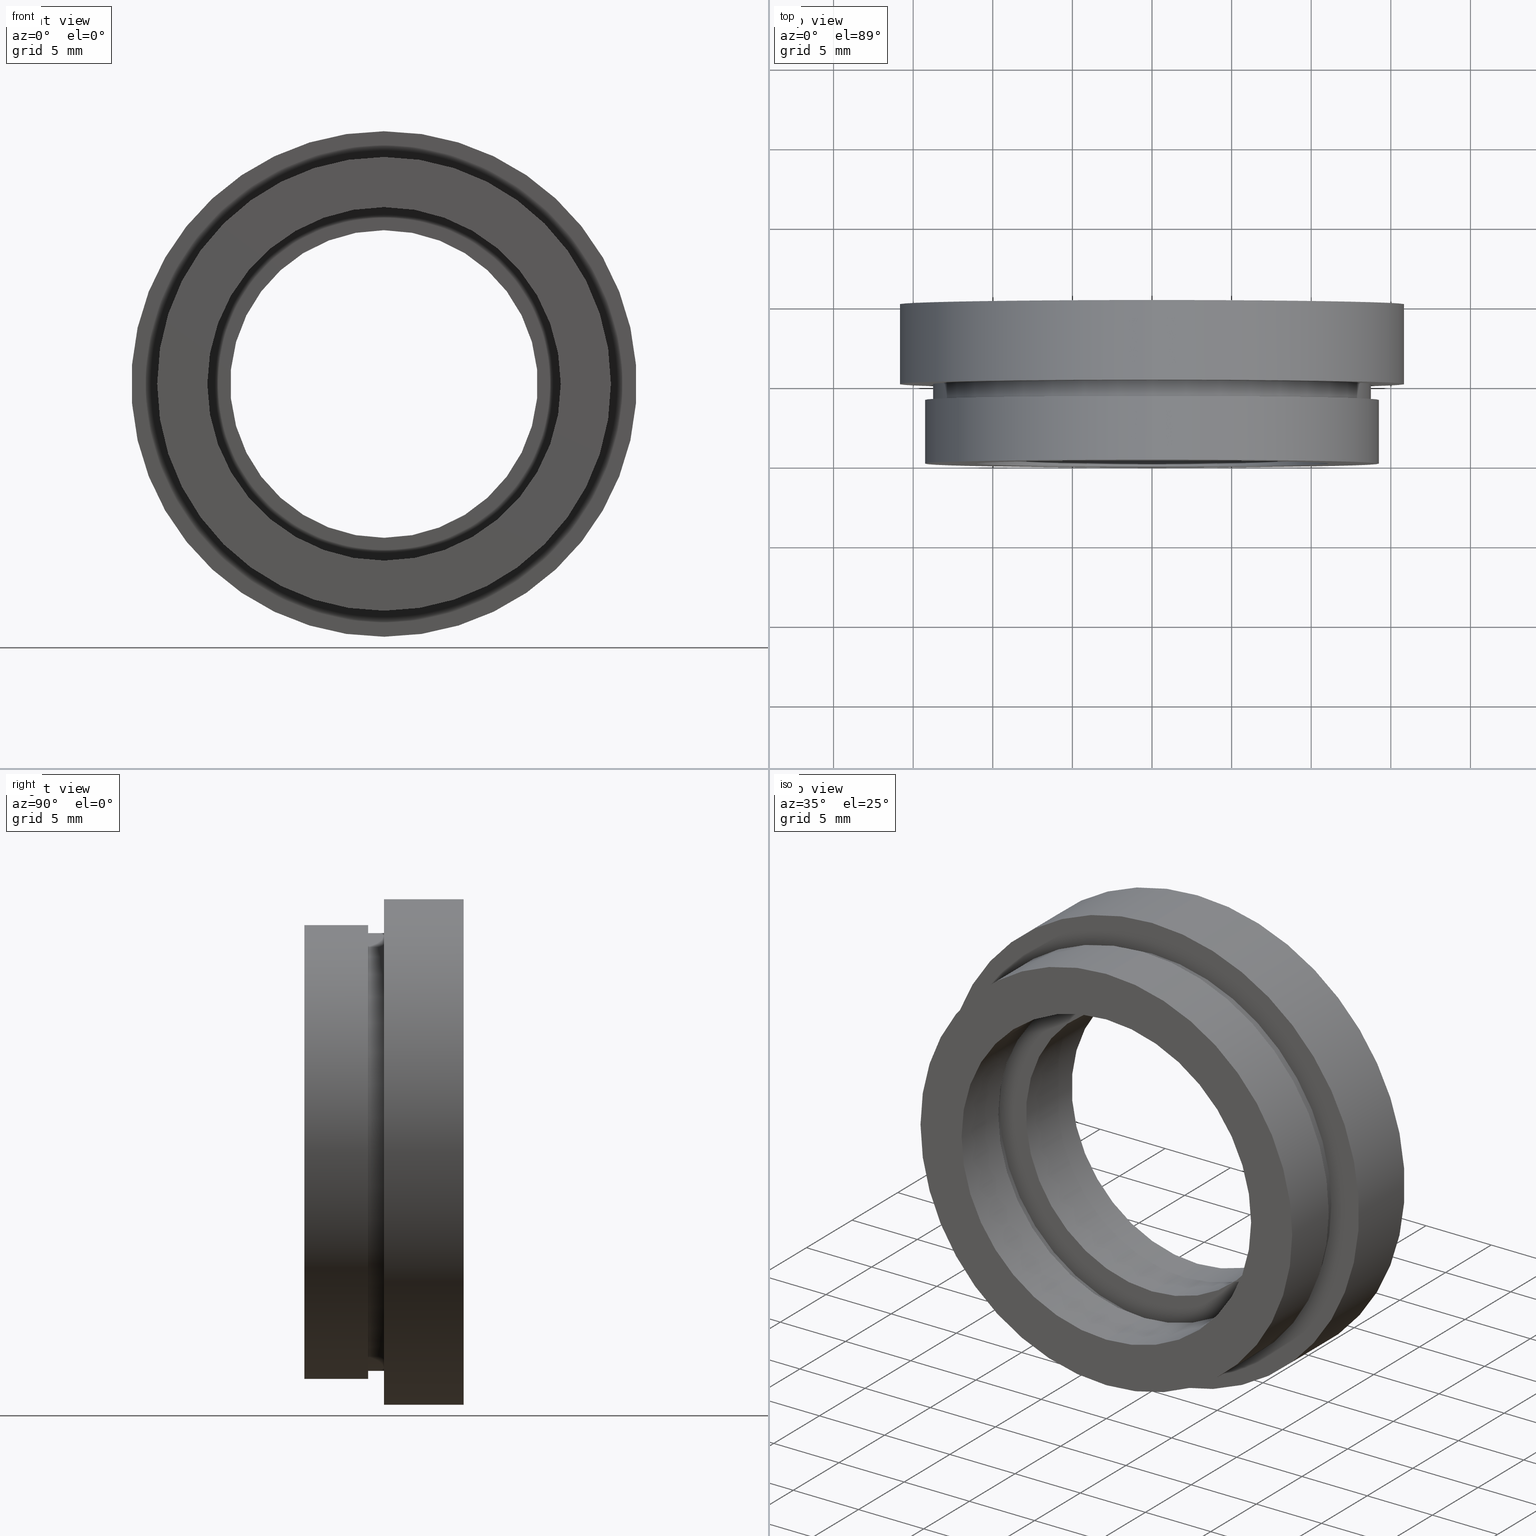
[diagram: canonical four-view strip — front | top / right | iso, engineering-drawing reading convention]
A machine part, canonical four-view strip (front | top / right | iso — engineering-drawing reading convention). The complete STEP part file that produces these views, byte-faithful:
ISO-10303-21;
HEADER;
FILE_DESCRIPTION (( 'STEP AP214' ),
    '1' );
FILE_NAME ('504127.STEP',
    '2019-10-10T07:55:11',
    ( 'user' ),
    ( '΢���й�' ),
    'SwSTEP 2.0',
    'SolidWorks 2016',
    '' );
FILE_SCHEMA (( 'AUTOMOTIVE_DESIGN' ));
ENDSEC;

DATA;
#1 =( LENGTH_UNIT ( ) NAMED_UNIT ( * ) SI_UNIT ( .MILLI., .METRE. ) );
#2 = ORIENTED_EDGE ( 'NONE', *, *, #137, .T. ) ;
#3 = DIRECTION ( 'NONE',  ( 0.0000000000000000000, 0.0000000000000000000, 1.000000000000000000 ) ) ;
#4 = CARTESIAN_POINT ( 'NONE',  ( 0.0000000000000000000, 4.000000000000000000, 0.0000000000000000000 ) ) ;
#5 = DIRECTION ( 'NONE',  ( 0.0000000000000000000, 0.0000000000000000000, 1.000000000000000000 ) ) ;
#6 = VECTOR ( 'NONE', #512, 1000.000000000000000 ) ;
#7 = VERTEX_POINT ( 'NONE', #585 ) ;
#8 = CARTESIAN_POINT ( 'NONE',  ( 0.0000000000000000000, 13.74468085106383300, 0.0000000000000000000 ) ) ;
#9 = VERTEX_POINT ( 'NONE', #18 ) ;
#10 = EDGE_CURVE ( 'NONE', #321, #36, #128, .T. ) ;
#11 = PRESENTATION_LAYER_ASSIGNMENT (  '', '', ( #587 ) ) ;
#12 = AXIS2_PLACEMENT_3D ( 'NONE', #497, #574, #176 ) ;
#13 = SURFACE_STYLE_USAGE ( .BOTH. , #536 ) ;
#14 =( NAMED_UNIT ( * ) PLANE_ANGLE_UNIT ( ) SI_UNIT ( $, .RADIAN. ) );
#15 = DIRECTION ( 'NONE',  ( -0.0000000000000000000, 1.000000000000000000, -0.0000000000000000000 ) ) ;
#16 =( NAMED_UNIT ( * ) PLANE_ANGLE_UNIT ( ) SI_UNIT ( $, .RADIAN. ) );
#17 = EDGE_LOOP ( 'NONE', ( #472, #621 ) ) ;
#18 = CARTESIAN_POINT ( 'NONE',  ( 0.0000000000000000000, 9.999999999999998200, 9.660000000000000100 ) ) ;
#19 = DIRECTION ( 'NONE',  ( -0.0000000000000000000, 1.000000000000000000, -0.0000000000000000000 ) ) ;
#20 =( NAMED_UNIT ( * ) SI_UNIT ( $, .STERADIAN. ) SOLID_ANGLE_UNIT ( ) );
#21 = CARTESIAN_POINT ( 'NONE',  ( 0.0000000000000000000, 5.000000000000000900, 0.0000000000000000000 ) ) ;
#22 = CIRCLE ( 'NONE', #177, 15.87500000000000000 ) ;
#23 = EDGE_LOOP ( 'NONE', ( #30, #610 ) ) ;
#24 = EDGE_CURVE ( 'NONE', #222, #106, #401, .T. ) ;
#25 = ADVANCED_FACE ( 'NONE', ( #280, #409 ), #434, .F. ) ;
#26 = EDGE_CURVE ( 'NONE', #592, #357, #28, .T. ) ;
#27 = DIRECTION ( 'NONE',  ( -0.0000000000000000000, 1.000000000000000000, -0.0000000000000000000 ) ) ;
#28 = LINE ( 'NONE', #285, #243 ) ;
#29 = PRESENTATION_LAYER_ASSIGNMENT (  '', '', ( #348 ) ) ;
#30 = ORIENTED_EDGE ( 'NONE', *, *, #565, .T. ) ;
#31 = DIRECTION ( 'NONE',  ( 0.0000000000000000000, 0.0000000000000000000, 1.000000000000000000 ) ) ;
#32 = PRESENTATION_STYLE_ASSIGNMENT (( #302 ) ) ;
#33 = EDGE_CURVE ( 'NONE', #557, #438, #589, .T. ) ;
#34 = CIRCLE ( 'NONE', #620, 13.75000000000000000 ) ;
#35 = FILL_AREA_STYLE_COLOUR ( '', #616 ) ;
#36 = VERTEX_POINT ( 'NONE', #404 ) ;
#37 = ORIENTED_EDGE ( 'NONE', *, *, #304, .T. ) ;
#38 = ORIENTED_EDGE ( 'NONE', *, *, #26, .F. ) ;
#39 =( LENGTH_UNIT ( ) NAMED_UNIT ( * ) SI_UNIT ( .MILLI., .METRE. ) );
#40 = SURFACE_STYLE_FILL_AREA ( #388 ) ;
#41 = EDGE_CURVE ( 'NONE', #373, #521, #420, .T. ) ;
#42 = AXIS2_PLACEMENT_3D ( 'NONE', #103, #121, #221 ) ;
#43 = LINE ( 'NONE', #452, #178 ) ;
#44 = CARTESIAN_POINT ( 'NONE',  ( 0.0000000000000000000, 13.74468085106383300, 13.75000000000000000 ) ) ;
#45 = ORIENTED_EDGE ( 'NONE', *, *, #165, .F. ) ;
#46 = ORIENTED_EDGE ( 'NONE', *, *, #63, .F. ) ;
#47 = AXIS2_PLACEMENT_3D ( 'NONE', #240, #376, #138 ) ;
#48 =( NAMED_UNIT ( * ) PLANE_ANGLE_UNIT ( ) SI_UNIT ( $, .RADIAN. ) );
#49 = UNCERTAINTY_MEASURE_WITH_UNIT (LENGTH_MEASURE( 1.000000000000000100E-005 ), #361, 'distance_accuracy_value', 'NONE');
#50 = SURFACE_STYLE_FILL_AREA ( #305 ) ;
#51 = EDGE_CURVE ( 'NONE', #357, #211, #433, .T. ) ;
#52 = VECTOR ( 'NONE', #27, 1000.000000000000000 ) ;
#53 = ADVANCED_FACE ( 'NONE', ( #555 ), #446, .F. ) ;
#54 = DIRECTION ( 'NONE',  ( -0.0000000000000000000, 1.000000000000000000, -0.0000000000000000000 ) ) ;
#55 = DIRECTION ( 'NONE',  ( 0.0000000000000000000, 0.0000000000000000000, 1.000000000000000000 ) ) ;
#56 = EDGE_CURVE ( 'NONE', #558, #7, #43, .T. ) ;
#57 = DIRECTION ( 'NONE',  ( 0.0000000000000000000, 0.0000000000000000000, 1.000000000000000000 ) ) ;
#58 = LINE ( 'NONE', #429, #509 ) ;
#59 = ADVANCED_FACE ( 'NONE', ( #166 ), #489, .T. ) ;
#60 =( NAMED_UNIT ( * ) SI_UNIT ( $, .STERADIAN. ) SOLID_ANGLE_UNIT ( ) );
#61 = PRESENTATION_STYLE_ASSIGNMENT (( #118 ) ) ;
#62 = DIRECTION ( 'NONE',  ( -0.0000000000000000000, 1.000000000000000000, -0.0000000000000000000 ) ) ;
#63 = EDGE_CURVE ( 'NONE', #592, #615, #22, .T. ) ;
#64 = CARTESIAN_POINT ( 'NONE',  ( 0.0000000000000000000, 0.0000000000000000000, 14.25000000000000000 ) ) ;
#65 = ORIENTED_EDGE ( 'NONE', *, *, #24, .T. ) ;
#66 = PLANE ( 'NONE',  #12 ) ;
#67 = DIRECTION ( 'NONE',  ( -0.0000000000000000000, 1.000000000000000000, -0.0000000000000000000 ) ) ;
#68 = STYLED_ITEM ( 'NONE', ( #269 ), #459 ) ;
#69 = CARTESIAN_POINT ( 'NONE',  ( 0.0000000000000000000, 9.999999999999998200, 0.0000000000000000000 ) ) ;
#70 = EDGE_LOOP ( 'NONE', ( #227, #572, #180, #38 ) ) ;
#71 = DIRECTION ( 'NONE',  ( -0.0000000000000000000, 1.000000000000000000, -0.0000000000000000000 ) ) ;
#72 = ORIENTED_EDGE ( 'NONE', *, *, #33, .T. ) ;
#73 = FILL_AREA_STYLE_COLOUR ( '', #120 ) ;
#74 = CARTESIAN_POINT ( 'NONE',  ( 0.0000000000000000000, 10.00000000000000000, 15.87500000000000000 ) ) ;
#75 = EDGE_CURVE ( 'NONE', #410, #222, #364, .T. ) ;
#76 = AXIS2_PLACEMENT_3D ( 'NONE', #293, #54, #366 ) ;
#77 = CARTESIAN_POINT ( 'NONE',  ( 1.745121688784978200E-015, 0.0000000000000000000, -14.25000000000000000 ) ) ;
#78 = DIRECTION ( 'NONE',  ( -0.0000000000000000000, 1.000000000000000000, -0.0000000000000000000 ) ) ;
#79 = ORIENTED_EDGE ( 'NONE', *, *, #56, .T. ) ;
#80 = ORIENTED_EDGE ( 'NONE', *, *, #24, .F. ) ;
#81 = CARTESIAN_POINT ( 'NONE',  ( 1.683889348827610700E-015, 4.000000000000000000, -13.75000000000000000 ) ) ;
#82 = DIRECTION ( 'NONE',  ( -0.0000000000000000000, 1.000000000000000000, -0.0000000000000000000 ) ) ;
#83 = VERTEX_POINT ( 'NONE', #217 ) ;
#84 = SURFACE_STYLE_FILL_AREA ( #377 ) ;
#85 = PLANE ( 'NONE',  #344 ) ;
#86 = FILL_AREA_STYLE ('',( #73 ) ) ;
#87 = CIRCLE ( 'NONE', #544, 14.25000000000000000 ) ;
#88 = FILL_AREA_STYLE_COLOUR ( '', #571 ) ;
#89 = EDGE_LOOP ( 'NONE', ( #451, #169, #65, #467 ) ) ;
#90 = LINE ( 'NONE', #478, #52 ) ;
#91 = SURFACE_STYLE_FILL_AREA ( #86 ) ;
#92 = EDGE_CURVE ( 'NONE', #218, #390, #397, .T. ) ;
#93 = PRODUCT ( '504127', '504127', '', ( #425 ) ) ;
#94 = AXIS2_PLACEMENT_3D ( 'NONE', #4, #214, #604 ) ;
#95 = EDGE_LOOP ( 'NONE', ( #170, #564 ) ) ;
#96 = ORIENTED_EDGE ( 'NONE', *, *, #568, .F. ) ;
#97 = PRESENTATION_STYLE_ASSIGNMENT (( #550 ) ) ;
#98 = COLOUR_RGB ( '',1.000000000000000000, 1.000000000000000000, 1.000000000000000000 ) ;
#99 =( GEOMETRIC_REPRESENTATION_CONTEXT ( 3 ) GLOBAL_UNCERTAINTY_ASSIGNED_CONTEXT ( ( #49 ) ) GLOBAL_UNIT_ASSIGNED_CONTEXT ( ( #361, #586, #399 ) ) REPRESENTATION_CONTEXT ( 'NONE', 'WORKASPACE' ) );
#100 =( NAMED_UNIT ( * ) PLANE_ANGLE_UNIT ( ) SI_UNIT ( $, .RADIAN. ) );
#101 = EDGE_CURVE ( 'NONE', #558, #193, #515, .T. ) ;
#102 = VERTEX_POINT ( 'NONE', #161 ) ;
#103 = CARTESIAN_POINT ( 'NONE',  ( 0.0000000000000000000, 0.0000000000000000000, 0.0000000000000000000 ) ) ;
#104 = CARTESIAN_POINT ( 'NONE',  ( 1.359357947053562400E-015, 0.0000000000000000000, -11.10000000000000100 ) ) ;
#105 = AXIS2_PLACEMENT_3D ( 'NONE', #517, #78, #144 ) ;
#106 = VERTEX_POINT ( 'NONE', #198 ) ;
#107 = AXIS2_PLACEMENT_3D ( 'NONE', #132, #345, #554 ) ;
#108 = CIRCLE ( 'NONE', #311, 9.660000000000000100 ) ;
#109 = DIRECTION ( 'NONE',  ( -0.0000000000000000000, 1.000000000000000000, -0.0000000000000000000 ) ) ;
#110 = CYLINDRICAL_SURFACE ( 'NONE', #385, 9.660000000000000100 ) ;
#111 = ADVANCED_FACE ( 'NONE', ( #618, #117 ), #85, .F. ) ;
#112 = ORIENTED_EDGE ( 'NONE', *, *, #206, .F. ) ;
#113 = ORIENTED_EDGE ( 'NONE', *, *, #494, .T. ) ;
#114 = DIRECTION ( 'NONE',  ( -0.0000000000000000000, 1.000000000000000000, -0.0000000000000000000 ) ) ;
#115 =( LENGTH_UNIT ( ) NAMED_UNIT ( * ) SI_UNIT ( .MILLI., .METRE. ) );
#116 = CARTESIAN_POINT ( 'NONE',  ( 0.0000000000000000000, 13.74468085106383300, 14.25000000000000000 ) ) ;
#117 = FACE_OUTER_BOUND ( 'NONE', #315, .T. ) ;
#118 = SURFACE_STYLE_USAGE ( .BOTH. , #253 ) ;
#119 = CARTESIAN_POINT ( 'NONE',  ( 1.432836755002403300E-015, 5.000000000000000900, -11.70000000000000100 ) ) ;
#120 = COLOUR_RGB ( '',1.000000000000000000, 1.000000000000000000, 1.000000000000000000 ) ;
#121 = DIRECTION ( 'NONE',  ( -0.0000000000000000000, 1.000000000000000000, -0.0000000000000000000 ) ) ;
#122 = CARTESIAN_POINT ( 'NONE',  ( 0.0000000000000000000, 13.74468085106383300, 0.0000000000000000000 ) ) ;
#123 = EDGE_CURVE ( 'NONE', #36, #390, #575, .T. ) ;
#124 = DIRECTION ( 'NONE',  ( -0.0000000000000000000, 1.000000000000000000, -0.0000000000000000000 ) ) ;
#125 = DIRECTION ( 'NONE',  ( -0.0000000000000000000, 1.000000000000000000, -0.0000000000000000000 ) ) ;
#126 = CARTESIAN_POINT ( 'NONE',  ( 1.944126793646423200E-015, 13.74468085106383300, -15.87500000000000000 ) ) ;
#127 =( NAMED_UNIT ( * ) SI_UNIT ( $, .STERADIAN. ) SOLID_ANGLE_UNIT ( ) );
#128 = CIRCLE ( 'NONE', #543, 13.75000000000000000 ) ;
#129 = EDGE_LOOP ( 'NONE', ( #503, #541, #246, #151 ) ) ;
#130 = LINE ( 'NONE', #126, #6 ) ;
#131 = EDGE_CURVE ( 'NONE', #321, #218, #359, .T. ) ;
#132 = CARTESIAN_POINT ( 'NONE',  ( 11.70000000000000100, 5.000000000000000000, 0.0000000000000000000 ) ) ;
#133 = FILL_AREA_STYLE ('',( #412 ) ) ;
#134 = CARTESIAN_POINT ( 'NONE',  ( 1.944126793646423200E-015, 10.00000000000000000, -15.87500000000000000 ) ) ;
#135 = SURFACE_SIDE_STYLE ('',( #476 ) ) ;
#136 = CARTESIAN_POINT ( 'NONE',  ( 1.432836755002403300E-015, 13.74468085106383300, -11.70000000000000100 ) ) ;
#137 = EDGE_CURVE ( 'NONE', #83, #9, #108, .T. ) ;
#138 = DIRECTION ( 'NONE',  ( 0.0000000000000000000, 0.0000000000000000000, 1.000000000000000000 ) ) ;
#139 =( LENGTH_UNIT ( ) NAMED_UNIT ( * ) SI_UNIT ( .MILLI., .METRE. ) );
#140 = AXIS2_PLACEMENT_3D ( 'NONE', #402, #125, #597 ) ;
#141 = AXIS2_PLACEMENT_3D ( 'NONE', #326, #190, #607 ) ;
#142 =( LENGTH_UNIT ( ) NAMED_UNIT ( * ) SI_UNIT ( .MILLI., .METRE. ) );
#143 = DIRECTION ( 'NONE',  ( -0.0000000000000000000, 1.000000000000000000, -0.0000000000000000000 ) ) ;
#144 = DIRECTION ( 'NONE',  ( 0.0000000000000000000, 0.0000000000000000000, 1.000000000000000000 ) ) ;
#145 = CIRCLE ( 'NONE', #595, 9.660000000000000100 ) ;
#146 = SHAPE_DEFINITION_REPRESENTATION ( #248, #346 ) ;
#147 = VECTOR ( 'NONE', #82, 1000.000000000000000 ) ;
#148 = UNCERTAINTY_MEASURE_WITH_UNIT (LENGTH_MEASURE( 1.000000000000000100E-005 ), #173, 'distance_accuracy_value', 'NONE');
#149 = EDGE_CURVE ( 'NONE', #102, #557, #605, .T. ) ;
#150 = DIRECTION ( 'NONE',  ( 0.0000000000000000000, 0.0000000000000000000, 1.000000000000000000 ) ) ;
#151 = ORIENTED_EDGE ( 'NONE', *, *, #230, .F. ) ;
#152 = CARTESIAN_POINT ( 'NONE',  ( 0.0000000000000000000, 13.74468085106383300, 0.0000000000000000000 ) ) ;
#153 = DIRECTION ( 'NONE',  ( 0.0000000000000000000, 0.0000000000000000000, 1.000000000000000000 ) ) ;
#154 = DIRECTION ( 'NONE',  ( 0.0000000000000000000, -1.000000000000000000, 0.0000000000000000000 ) ) ;
#155 = DIRECTION ( 'NONE',  ( 0.0000000000000000000, 0.0000000000000000000, 1.000000000000000000 ) ) ;
#156 = CYLINDRICAL_SURFACE ( 'NONE', #270, 14.25000000000000000 ) ;
#157 = ORIENTED_EDGE ( 'NONE', *, *, #568, .T. ) ;
#158 = ORIENTED_EDGE ( 'NONE', *, *, #565, .F. ) ;
#159 = FILL_AREA_STYLE_COLOUR ( '', #386 ) ;
#160 = EDGE_CURVE ( 'NONE', #521, #373, #322, .T. ) ;
#161 = CARTESIAN_POINT ( 'NONE',  ( 0.0000000000000000000, 4.000000000000000000, 11.70000000000000100 ) ) ;
#162 = CIRCLE ( 'NONE', #196, 11.10000000000000100 ) ;
#163 = CIRCLE ( 'NONE', #532, 14.25000000000000000 ) ;
#164 = CARTESIAN_POINT ( 'NONE',  ( 0.0000000000000000000, 5.000000000000000900, 0.0000000000000000000 ) ) ;
#165 = EDGE_CURVE ( 'NONE', #201, #7, #330, .T. ) ;
#166 = FACE_OUTER_BOUND ( 'NONE', #234, .T. ) ;
#167 = DIRECTION ( 'NONE',  ( 0.0000000000000000000, 0.0000000000000000000, 1.000000000000000000 ) ) ;
#168 = SURFACE_SIDE_STYLE ('',( #84 ) ) ;
#169 = ORIENTED_EDGE ( 'NONE', *, *, #320, .F. ) ;
#170 = ORIENTED_EDGE ( 'NONE', *, *, #320, .T. ) ;
#171 = PRESENTATION_LAYER_ASSIGNMENT (  '', '', ( #68 ) ) ;
#172 = FACE_OUTER_BOUND ( 'NONE', #235, .T. ) ;
#173 =( LENGTH_UNIT ( ) NAMED_UNIT ( * ) SI_UNIT ( .MILLI., .METRE. ) );
#174 = EDGE_CURVE ( 'NONE', #410, #383, #284, .T. ) ;
#175 = ORIENTED_EDGE ( 'NONE', *, *, #101, .F. ) ;
#176 = DIRECTION ( 'NONE',  ( 0.0000000000000000000, 0.0000000000000000000, 1.000000000000000000 ) ) ;
#177 = AXIS2_PLACEMENT_3D ( 'NONE', #576, #195, #216 ) ;
#178 = VECTOR ( 'NONE', #318, 1000.000000000000000 ) ;
#179 = PRESENTATION_STYLE_ASSIGNMENT (( #522 ) ) ;
#180 = ORIENTED_EDGE ( 'NONE', *, *, #51, .F. ) ;
#181 = ORIENTED_EDGE ( 'NONE', *, *, #449, .F. ) ;
#182 = FACE_OUTER_BOUND ( 'NONE', #468, .T. ) ;
#183 = EDGE_LOOP ( 'NONE', ( #481, #411, #261, #157 ) ) ;
#184 = ORIENTED_EDGE ( 'NONE', *, *, #327, .T. ) ;
#185 = ORIENTED_EDGE ( 'NONE', *, *, #282, .F. ) ;
#186 = CARTESIAN_POINT ( 'NONE',  ( 0.0000000000000000000, 13.74468085106383300, 0.0000000000000000000 ) ) ;
#187 = AXIS2_PLACEMENT_3D ( 'NONE', #152, #213, #552 ) ;
#188 = FACE_BOUND ( 'NONE', #95, .T. ) ;
#189 = DIRECTION ( 'NONE',  ( -0.0000000000000000000, 1.000000000000000000, -0.0000000000000000000 ) ) ;
#190 = DIRECTION ( 'NONE',  ( -0.0000000000000000000, 1.000000000000000000, -0.0000000000000000000 ) ) ;
#191 = CIRCLE ( 'NONE', #94, 11.70000000000000100 ) ;
#192 = FILL_AREA_STYLE_COLOUR ( '', #560 ) ;
#193 = VERTEX_POINT ( 'NONE', #64 ) ;
#194 = FACE_OUTER_BOUND ( 'NONE', #281, .T. ) ;
#195 = DIRECTION ( 'NONE',  ( -0.0000000000000000000, 1.000000000000000000, -0.0000000000000000000 ) ) ;
#196 = AXIS2_PLACEMENT_3D ( 'NONE', #432, #205, #31 ) ;
#197 = CARTESIAN_POINT ( 'NONE',  ( 1.183008807976343300E-015, 5.000000000000000900, -9.660000000000000100 ) ) ;
#198 = CARTESIAN_POINT ( 'NONE',  ( 0.0000000000000000000, 4.000000000000000000, 11.10000000000000100 ) ) ;
#199 = AXIS2_PLACEMENT_3D ( 'NONE', #485, #324, #167 ) ;
#200 =( NAMED_UNIT ( * ) SI_UNIT ( $, .STERADIAN. ) SOLID_ANGLE_UNIT ( ) );
#201 = VERTEX_POINT ( 'NONE', #287 ) ;
#202 = DIRECTION ( 'NONE',  ( 1.000000000000000000, 0.0000000000000000000, 0.0000000000000000000 ) ) ;
#203 = CARTESIAN_POINT ( 'NONE',  ( 0.0000000000000000000, 0.0000000000000000000, 0.0000000000000000000 ) ) ;
#204 = CARTESIAN_POINT ( 'NONE',  ( 0.0000000000000000000, 13.74468085106383300, 0.0000000000000000000 ) ) ;
#205 = DIRECTION ( 'NONE',  ( -0.0000000000000000000, 1.000000000000000000, -0.0000000000000000000 ) ) ;
#206 = EDGE_CURVE ( 'NONE', #193, #201, #511, .T. ) ;
#207 = AXIS2_PLACEMENT_3D ( 'NONE', #208, #71, #150 ) ;
#208 = CARTESIAN_POINT ( 'NONE',  ( 0.0000000000000000000, 4.999999999999999100, 0.0000000000000000000 ) ) ;
#209 = AXIS2_PLACEMENT_3D ( 'NONE', #374, #594, #507 ) ;
#210 = DIRECTION ( 'NONE',  ( 0.0000000000000000000, 0.0000000000000000000, 1.000000000000000000 ) ) ;
#211 = VERTEX_POINT ( 'NONE', #134 ) ;
#212 = ADVANCED_FACE ( 'NONE', ( #299 ), #413, .T. ) ;
#213 = DIRECTION ( 'NONE',  ( -0.0000000000000000000, 1.000000000000000000, -0.0000000000000000000 ) ) ;
#214 = DIRECTION ( 'NONE',  ( -0.0000000000000000000, 1.000000000000000000, -0.0000000000000000000 ) ) ;
#215 = CARTESIAN_POINT ( 'NONE',  ( 1.183008807976343300E-015, 13.74468085106383300, -9.660000000000000100 ) ) ;
#216 = DIRECTION ( 'NONE',  ( 0.0000000000000000000, 0.0000000000000000000, 1.000000000000000000 ) ) ;
#217 = CARTESIAN_POINT ( 'NONE',  ( 1.183008807976343300E-015, 9.999999999999998200, -9.660000000000000100 ) ) ;
#218 = VERTEX_POINT ( 'NONE', #606 ) ;
#219 = CIRCLE ( 'NONE', #239, 11.10000000000000100 ) ;
#220 = STYLED_ITEM ( 'NONE', ( #454 ), #245 ) ;
#221 = DIRECTION ( 'NONE',  ( 0.0000000000000000000, 0.0000000000000000000, 1.000000000000000000 ) ) ;
#222 = VERTEX_POINT ( 'NONE', #577 ) ;
#223 = PLANE ( 'NONE',  #312 ) ;
#224 = VECTOR ( 'NONE', #363, 1000.000000000000000 ) ;
#225 = MECHANICAL_DESIGN_GEOMETRIC_PRESENTATION_REPRESENTATION (  '', ( #68 ), #477 ) ;
#226 = FILL_AREA_STYLE ('',( #159 ) ) ;
#227 = ORIENTED_EDGE ( 'NONE', *, *, #63, .T. ) ;
#228 = ORIENTED_EDGE ( 'NONE', *, *, #123, .F. ) ;
#229 = FACE_BOUND ( 'NONE', #540, .T. ) ;
#230 = EDGE_CURVE ( 'NONE', #211, #357, #294, .T. ) ;
#231 = CYLINDRICAL_SURFACE ( 'NONE', #141, 15.87500000000000000 ) ;
#232 =( LENGTH_UNIT ( ) NAMED_UNIT ( * ) SI_UNIT ( .MILLI., .METRE. ) );
#233 = DIRECTION ( 'NONE',  ( -0.0000000000000000000, 1.000000000000000000, -0.0000000000000000000 ) ) ;
#234 = EDGE_LOOP ( 'NONE', ( #306, #448, #274, #355 ) ) ;
#235 = EDGE_LOOP ( 'NONE', ( #579, #72, #510, #547 ) ) ;
#236 = MECHANICAL_DESIGN_GEOMETRIC_PRESENTATION_REPRESENTATION (  '', ( #396 ), #608 ) ;
#237 = CARTESIAN_POINT ( 'NONE',  ( 0.0000000000000000000, 4.999999999999999100, 13.75000000000000000 ) ) ;
#238 = FACE_OUTER_BOUND ( 'NONE', #183, .T. ) ;
#239 = AXIS2_PLACEMENT_3D ( 'NONE', #371, #295, #619 ) ;
#240 = CARTESIAN_POINT ( 'NONE',  ( 0.0000000000000000000, 13.74468085106383300, 0.0000000000000000000 ) ) ;
#241 = DIRECTION ( 'NONE',  ( -0.0000000000000000000, 1.000000000000000000, -0.0000000000000000000 ) ) ;
#242 = APPLICATION_PROTOCOL_DEFINITION ( 'draft international standard', 'automotive_design', 1998, #418 ) ;
#243 = VECTOR ( 'NONE', #62, 1000.000000000000000 ) ;
#244 = ADVANCED_FACE ( 'NONE', ( #598 ), #436, .T. ) ;
#245 = ADVANCED_FACE ( 'NONE', ( #424 ), #523, .F. ) ;
#246 = ORIENTED_EDGE ( 'NONE', *, *, #26, .T. ) ;
#247 = FILL_AREA_STYLE ('',( #88 ) ) ;
#248 = PRODUCT_DEFINITION_SHAPE ( 'NONE', 'NONE',  #470 ) ;
#249 = FILL_AREA_STYLE_COLOUR ( '', #98 ) ;
#250 = AXIS2_PLACEMENT_3D ( 'NONE', #310, #457, #3 ) ;
#251 = UNCERTAINTY_MEASURE_WITH_UNIT (LENGTH_MEASURE( 1.000000000000000100E-005 ), #39, 'distance_accuracy_value', 'NONE');
#252 = CIRCLE ( 'NONE', #300, 13.75000000000000000 ) ;
#253 = SURFACE_SIDE_STYLE ('',( #314 ) ) ;
#254 = FACE_OUTER_BOUND ( 'NONE', #337, .T. ) ;
#255 = APPLICATION_CONTEXT ( 'automotive_design' ) ;
#256 = ADVANCED_FACE ( 'NONE', ( #622 ), #309, .F. ) ;
#257 = ORIENTED_EDGE ( 'NONE', *, *, #165, .T. ) ;
#258 = AXIS2_PLACEMENT_3D ( 'NONE', #122, #233, #553 ) ;
#259 = ORIENTED_EDGE ( 'NONE', *, *, #51, .T. ) ;
#260 = DIRECTION ( 'NONE',  ( 0.0000000000000000000, -1.000000000000000000, 0.0000000000000000000 ) ) ;
#261 = ORIENTED_EDGE ( 'NONE', *, *, #578, .T. ) ;
#262 = SURFACE_SIDE_STYLE ('',( #40 ) ) ;
#263 = FACE_OUTER_BOUND ( 'NONE', #70, .T. ) ;
#264 = DIRECTION ( 'NONE',  ( -0.0000000000000000000, 1.000000000000000000, -0.0000000000000000000 ) ) ;
#265 = CARTESIAN_POINT ( 'NONE',  ( 0.0000000000000000000, 0.0000000000000000000, 0.0000000000000000000 ) ) ;
#266 = ADVANCED_FACE ( 'NONE', ( #422 ), #479, .F. ) ;
#267 = DIRECTION ( 'NONE',  ( 0.0000000000000000000, 0.0000000000000000000, 1.000000000000000000 ) ) ;
#268 = CARTESIAN_POINT ( 'NONE',  ( 0.0000000000000000000, 13.74468085106383300, 0.0000000000000000000 ) ) ;
#269 = PRESENTATION_STYLE_ASSIGNMENT (( #13 ) ) ;
#270 = AXIS2_PLACEMENT_3D ( 'NONE', #8, #114, #155 ) ;
#271 = EDGE_LOOP ( 'NONE', ( #421, #79, #45, #112 ) ) ;
#272 =( NAMED_UNIT ( * ) SI_UNIT ( $, .STERADIAN. ) SOLID_ANGLE_UNIT ( ) );
#273 = ADVANCED_FACE ( 'NONE', ( #338, #549 ), #66, .F. ) ;
#274 = ORIENTED_EDGE ( 'NONE', *, *, #206, .T. ) ;
#275 = CYLINDRICAL_SURFACE ( 'NONE', #611, 11.70000000000000100 ) ;
#276 = FACE_OUTER_BOUND ( 'NONE', #356, .T. ) ;
#277 = AXIS2_PLACEMENT_3D ( 'NONE', #204, #19, #335 ) ;
#278 = CIRCLE ( 'NONE', #334, 15.87500000000000000 ) ;
#279 = CARTESIAN_POINT ( 'NONE',  ( 0.0000000000000000000, 5.000000000000000900, 15.87500000000000000 ) ) ;
#280 = FACE_BOUND ( 'NONE', #474, .T. ) ;
#281 = EDGE_LOOP ( 'NONE', ( #347, #435, #546, #288 ) ) ;
#282 = EDGE_CURVE ( 'NONE', #500, #438, #332, .T. ) ;
#283 = DIRECTION ( 'NONE',  ( 0.0000000000000000000, 0.0000000000000000000, 1.000000000000000000 ) ) ;
#284 = LINE ( 'NONE', #395, #301 ) ;
#285 = CARTESIAN_POINT ( 'NONE',  ( 0.0000000000000000000, 13.74468085106383300, 15.87500000000000000 ) ) ;
#286 = CARTESIAN_POINT ( 'NONE',  ( 0.0000000000000000000, 4.000000000000000000, 0.0000000000000000000 ) ) ;
#287 = CARTESIAN_POINT ( 'NONE',  ( 0.0000000000000000000, 4.000000000000000000, 14.25000000000000000 ) ) ;
#288 = ORIENTED_EDGE ( 'NONE', *, *, #92, .F. ) ;
#289 = ADVANCED_FACE ( 'NONE', ( #254, #350 ), #343, .F. ) ;
#290 = PRESENTATION_LAYER_ASSIGNMENT (  '', '', ( #396 ) ) ;
#291 = ORIENTED_EDGE ( 'NONE', *, *, #41, .F. ) ;
#292 = ADVANCED_FACE ( 'NONE', ( #229, #276 ), #370, .F. ) ;
#293 = CARTESIAN_POINT ( 'NONE',  ( 0.0000000000000000000, 0.0000000000000000000, 0.0000000000000000000 ) ) ;
#294 = CIRCLE ( 'NONE', #475, 15.87500000000000000 ) ;
#295 = DIRECTION ( 'NONE',  ( -0.0000000000000000000, 1.000000000000000000, -0.0000000000000000000 ) ) ;
#296 = DIRECTION ( 'NONE',  ( -0.0000000000000000000, 1.000000000000000000, -0.0000000000000000000 ) ) ;
#297 = VECTOR ( 'NONE', #405, 1000.000000000000000 ) ;
#298 = ORIENTED_EDGE ( 'NONE', *, *, #230, .T. ) ;
#299 = FACE_OUTER_BOUND ( 'NONE', #129, .T. ) ;
#300 = AXIS2_PLACEMENT_3D ( 'NONE', #407, #591, #353 ) ;
#301 = VECTOR ( 'NONE', #296, 1000.000000000000000 ) ;
#302 = SURFACE_STYLE_USAGE ( .BOTH. , #262 ) ;
#303 = ADVANCED_FACE ( 'NONE', ( #263 ), #231, .T. ) ;
#304 = EDGE_CURVE ( 'NONE', #373, #83, #612, .T. ) ;
#305 = FILL_AREA_STYLE ('',( #365 ) ) ;
#306 = ORIENTED_EDGE ( 'NONE', *, *, #56, .F. ) ;
#307 = ORIENTED_EDGE ( 'NONE', *, *, #149, .F. ) ;
#308 = PRODUCT_RELATED_PRODUCT_CATEGORY ( 'part', '', ( #93 ) ) ;
#309 = CYLINDRICAL_SURFACE ( 'NONE', #516, 11.10000000000000100 ) ;
#310 = CARTESIAN_POINT ( 'NONE',  ( 0.0000000000000000000, 13.74468085106383300, 0.0000000000000000000 ) ) ;
#311 = AXIS2_PLACEMENT_3D ( 'NONE', #545, #329, #437 ) ;
#312 = AXIS2_PLACEMENT_3D ( 'NONE', #524, #570, #5 ) ;
#313 = ADVANCED_FACE ( 'NONE', ( #172 ), #275, .F. ) ;
#314 = SURFACE_STYLE_FILL_AREA ( #247 ) ;
#315 = EDGE_LOOP ( 'NONE', ( #603, #492 ) ) ;
#316 = ORIENTED_EDGE ( 'NONE', *, *, #282, .T. ) ;
#317 = PRODUCT_DEFINITION_CONTEXT ( 'detailed design', #418, 'design' ) ;
#318 = DIRECTION ( 'NONE',  ( -0.0000000000000000000, 1.000000000000000000, -0.0000000000000000000 ) ) ;
#319 = VECTOR ( 'NONE', #530, 1000.000000000000000 ) ;
#320 = EDGE_CURVE ( 'NONE', #222, #410, #219, .T. ) ;
#321 = VERTEX_POINT ( 'NONE', #81 ) ;
#322 = CIRCLE ( 'NONE', #384, 9.660000000000000100 ) ;
#323 = MECHANICAL_DESIGN_GEOMETRIC_PRESENTATION_REPRESENTATION (  '', ( #220 ), #362 ) ;
#324 = DIRECTION ( 'NONE',  ( -0.0000000000000000000, 1.000000000000000000, -0.0000000000000000000 ) ) ;
#325 =( NAMED_UNIT ( * ) SI_UNIT ( $, .STERADIAN. ) SOLID_ANGLE_UNIT ( ) );
#326 = CARTESIAN_POINT ( 'NONE',  ( 0.0000000000000000000, 13.74468085106383300, 0.0000000000000000000 ) ) ;
#327 = EDGE_CURVE ( 'NONE', #102, #500, #90, .T. ) ;
#328 = CLOSED_SHELL ( 'NONE', ( #459, #244, #303, #245, #313, #256, #266, #111, #53, #289, #354, #292, #212, #273, #379, #25, #59, #340 ) ) ;
#329 = DIRECTION ( 'NONE',  ( -0.0000000000000000000, 1.000000000000000000, -0.0000000000000000000 ) ) ;
#330 = CIRCLE ( 'NONE', #416, 14.25000000000000000 ) ;
#331 = DIRECTION ( 'NONE',  ( -0.0000000000000000000, 1.000000000000000000, -0.0000000000000000000 ) ) ;
#332 = CIRCLE ( 'NONE', #537, 11.70000000000000100 ) ;
#333 = UNCERTAINTY_MEASURE_WITH_UNIT (LENGTH_MEASURE( 1.000000000000000100E-005 ), #139, 'distance_accuracy_value', 'NONE');
#334 = AXIS2_PLACEMENT_3D ( 'NONE', #498, #490, #153 ) ;
#335 = DIRECTION ( 'NONE',  ( 0.0000000000000000000, 0.0000000000000000000, 1.000000000000000000 ) ) ;
#336 = DIRECTION ( 'NONE',  ( -0.0000000000000000000, 1.000000000000000000, -0.0000000000000000000 ) ) ;
#337 = EDGE_LOOP ( 'NONE', ( #185, #613 ) ) ;
#338 = FACE_OUTER_BOUND ( 'NONE', #403, .T. ) ;
#339 = PRODUCT_DEFINITION_FORMATION_WITH_SPECIFIED_SOURCE ( '�κ�', '', #93, .NOT_KNOWN. ) ;
#340 = ADVANCED_FACE ( 'NONE', ( #182, #188 ), #223, .F. ) ;
#341 = CARTESIAN_POINT ( 'NONE',  ( 0.0000000000000000000, 5.000000000000000900, 0.0000000000000000000 ) ) ;
#342 = CIRCLE ( 'NONE', #567, 11.10000000000000100 ) ;
#343 = PLANE ( 'NONE',  #107 ) ;
#344 = AXIS2_PLACEMENT_3D ( 'NONE', #381, #260, #392 ) ;
#345 = DIRECTION ( 'NONE',  ( -0.0000000000000000000, 1.000000000000000000, 0.0000000000000000000 ) ) ;
#346 = ADVANCED_BREP_SHAPE_REPRESENTATION ( '504127', ( #358, #380 ), #99 ) ;
#347 = ORIENTED_EDGE ( 'NONE', *, *, #131, .F. ) ;
#348 = STYLED_ITEM ( 'NONE', ( #97 ), #354 ) ;
#349 = DIRECTION ( 'NONE',  ( 0.0000000000000000000, 0.0000000000000000000, 1.000000000000000000 ) ) ;
#350 = FACE_BOUND ( 'NONE', #17, .T. ) ;
#351 = SURFACE_SIDE_STYLE ('',( #91 ) ) ;
#352 = CARTESIAN_POINT ( 'NONE',  ( 0.0000000000000000000, 4.000000000000000000, 0.0000000000000000000 ) ) ;
#353 = DIRECTION ( 'NONE',  ( 0.0000000000000000000, 0.0000000000000000000, 1.000000000000000000 ) ) ;
#354 = ADVANCED_FACE ( 'NONE', ( #238 ), #110, .F. ) ;
#355 = ORIENTED_EDGE ( 'NONE', *, *, #535, .F. ) ;
#356 = EDGE_LOOP ( 'NONE', ( #259, #298 ) ) ;
#357 = VERTEX_POINT ( 'NONE', #74 ) ;
#358 = MANIFOLD_SOLID_BREP ( '��ת1', #328 ) ;
#359 = LINE ( 'NONE', #469, #319 ) ;
#360 = CARTESIAN_POINT ( 'NONE',  ( 0.0000000000000000000, 13.74468085106383300, 0.0000000000000000000 ) ) ;
#361 =( LENGTH_UNIT ( ) NAMED_UNIT ( * ) SI_UNIT ( .MILLI., .METRE. ) );
#362 =( GEOMETRIC_REPRESENTATION_CONTEXT ( 3 ) GLOBAL_UNCERTAINTY_ASSIGNED_CONTEXT ( ( #458 ) ) GLOBAL_UNIT_ASSIGNED_CONTEXT ( ( #232, #394, #484 ) ) REPRESENTATION_CONTEXT ( 'NONE', 'WORKASPACE' ) );
#363 = DIRECTION ( 'NONE',  ( -0.0000000000000000000, 1.000000000000000000, -0.0000000000000000000 ) ) ;
#364 = CIRCLE ( 'NONE', #76, 11.10000000000000100 ) ;
#365 = FILL_AREA_STYLE_COLOUR ( '', #508 ) ;
#366 = DIRECTION ( 'NONE',  ( 0.0000000000000000000, 0.0000000000000000000, 1.000000000000000000 ) ) ;
#367 = ORIENTED_EDGE ( 'NONE', *, *, #617, .F. ) ;
#368 = EDGE_CURVE ( 'NONE', #615, #211, #130, .T. ) ;
#369 = DIRECTION ( 'NONE',  ( 0.0000000000000000000, 0.0000000000000000000, 1.000000000000000000 ) ) ;
#370 = PLANE ( 'NONE',  #209 ) ;
#371 = CARTESIAN_POINT ( 'NONE',  ( 0.0000000000000000000, 0.0000000000000000000, 0.0000000000000000000 ) ) ;
#372 = EDGE_LOOP ( 'NONE', ( #562, #307, #184, #316 ) ) ;
#373 = VERTEX_POINT ( 'NONE', #197 ) ;
#374 = CARTESIAN_POINT ( 'NONE',  ( 9.660000000000000100, 9.999999999999998200, 0.0000000000000000000 ) ) ;
#375 = EDGE_CURVE ( 'NONE', #438, #500, #426, .T. ) ;
#376 = DIRECTION ( 'NONE',  ( -0.0000000000000000000, 1.000000000000000000, -0.0000000000000000000 ) ) ;
#377 = FILL_AREA_STYLE ('',( #249 ) ) ;
#378 = UNCERTAINTY_MEASURE_WITH_UNIT (LENGTH_MEASURE( 1.000000000000000100E-005 ), #1, 'distance_accuracy_value', 'NONE');
#379 = ADVANCED_FACE ( 'NONE', ( #194 ), #499, .T. ) ;
#380 = AXIS2_PLACEMENT_3D ( 'NONE', #203, #57, #202 ) ;
#381 = CARTESIAN_POINT ( 'NONE',  ( 11.10000000000000100, 4.000000000000000000, 0.0000000000000000000 ) ) ;
#382 = DIRECTION ( 'NONE',  ( 0.0000000000000000000, 0.0000000000000000000, 1.000000000000000000 ) ) ;
#383 = VERTEX_POINT ( 'NONE', #488 ) ;
#384 = AXIS2_PLACEMENT_3D ( 'NONE', #164, #15, #283 ) ;
#385 = AXIS2_PLACEMENT_3D ( 'NONE', #268, #241, #55 ) ;
#386 = COLOUR_RGB ( '',1.000000000000000000, 1.000000000000000000, 1.000000000000000000 ) ;
#387 =( NAMED_UNIT ( * ) PLANE_ANGLE_UNIT ( ) SI_UNIT ( $, .RADIAN. ) );
#388 = FILL_AREA_STYLE ('',( #192 ) ) ;
#389 = ORIENTED_EDGE ( 'NONE', *, *, #578, .F. ) ;
#390 = VERTEX_POINT ( 'NONE', #237 ) ;
#391 = DIRECTION ( 'NONE',  ( -0.0000000000000000000, 1.000000000000000000, -0.0000000000000000000 ) ) ;
#392 = DIRECTION ( 'NONE',  ( 0.0000000000000000000, -0.0000000000000000000, -1.000000000000000000 ) ) ;
#393 =( NAMED_UNIT ( * ) PLANE_ANGLE_UNIT ( ) SI_UNIT ( $, .RADIAN. ) );
#394 =( NAMED_UNIT ( * ) PLANE_ANGLE_UNIT ( ) SI_UNIT ( $, .RADIAN. ) );
#395 = CARTESIAN_POINT ( 'NONE',  ( 1.359357947053562400E-015, 13.74468085106383300, -11.10000000000000100 ) ) ;
#396 = STYLED_ITEM ( 'NONE', ( #513 ), #256 ) ;
#397 = CIRCLE ( 'NONE', #207, 13.75000000000000000 ) ;
#398 = CARTESIAN_POINT ( 'NONE',  ( 1.944126793646423200E-015, 5.000000000000000900, -15.87500000000000000 ) ) ;
#399 =( NAMED_UNIT ( * ) SI_UNIT ( $, .STERADIAN. ) SOLID_ANGLE_UNIT ( ) );
#400 = DIRECTION ( 'NONE',  ( -0.0000000000000000000, 1.000000000000000000, -0.0000000000000000000 ) ) ;
#401 = LINE ( 'NONE', #538, #147 ) ;
#402 = CARTESIAN_POINT ( 'NONE',  ( 0.0000000000000000000, 13.74468085106383300, 0.0000000000000000000 ) ) ;
#403 = EDGE_LOOP ( 'NONE', ( #46, #181 ) ) ;
#404 = CARTESIAN_POINT ( 'NONE',  ( 0.0000000000000000000, 4.000000000000000000, 13.75000000000000000 ) ) ;
#405 = DIRECTION ( 'NONE',  ( -0.0000000000000000000, 1.000000000000000000, -0.0000000000000000000 ) ) ;
#406 = MECHANICAL_DESIGN_GEOMETRIC_PRESENTATION_REPRESENTATION (  '', ( #461 ), #518 ) ;
#407 = CARTESIAN_POINT ( 'NONE',  ( 0.0000000000000000000, 4.000000000000000000, 0.0000000000000000000 ) ) ;
#408 = FACE_OUTER_BOUND ( 'NONE', #271, .T. ) ;
#409 = FACE_OUTER_BOUND ( 'NONE', #491, .T. ) ;
#410 = VERTEX_POINT ( 'NONE', #104 ) ;
#411 = ORIENTED_EDGE ( 'NONE', *, *, #160, .F. ) ;
#412 = FILL_AREA_STYLE_COLOUR ( '', #493 ) ;
#413 = CYLINDRICAL_SURFACE ( 'NONE', #187, 15.87500000000000000 ) ;
#414 = APPLICATION_PROTOCOL_DEFINITION ( 'draft international standard', 'automotive_design', 1998, #255 ) ;
#415 = CARTESIAN_POINT ( 'NONE',  ( 0.0000000000000000000, 4.000000000000000000, 0.0000000000000000000 ) ) ;
#416 = AXIS2_PLACEMENT_3D ( 'NONE', #352, #559, #569 ) ;
#417 = MECHANICAL_DESIGN_GEOMETRIC_PRESENTATION_REPRESENTATION (  '', ( #506 ), #447 ) ;
#418 = APPLICATION_CONTEXT ( 'automotive_design' ) ;
#419 = SURFACE_STYLE_USAGE ( .BOTH. , #168 ) ;
#420 = CIRCLE ( 'NONE', #199, 9.660000000000000100 ) ;
#421 = ORIENTED_EDGE ( 'NONE', *, *, #617, .T. ) ;
#422 = FACE_OUTER_BOUND ( 'NONE', #89, .T. ) ;
#423 = EDGE_CURVE ( 'NONE', #557, #102, #191, .T. ) ;
#424 = FACE_OUTER_BOUND ( 'NONE', #495, .T. ) ;
#425 = PRODUCT_CONTEXT ( 'NONE', #255, 'mechanical' ) ;
#426 = CIRCLE ( 'NONE', #539, 11.70000000000000100 ) ;
#427 = EDGE_LOOP ( 'NONE', ( #113, #496, #158, #228 ) ) ;
#428 = ORIENTED_EDGE ( 'NONE', *, *, #535, .T. ) ;
#429 = CARTESIAN_POINT ( 'NONE',  ( 0.0000000000000000000, 13.74468085106383300, 9.660000000000000100 ) ) ;
#430 = AXIS2_PLACEMENT_3D ( 'NONE', #186, #67, #584 ) ;
#431 = DIRECTION ( 'NONE',  ( 0.0000000000000000000, 0.0000000000000000000, 1.000000000000000000 ) ) ;
#432 = CARTESIAN_POINT ( 'NONE',  ( 0.0000000000000000000, 4.000000000000000000, 0.0000000000000000000 ) ) ;
#433 = CIRCLE ( 'NONE', #439, 15.87500000000000000 ) ;
#434 = PLANE ( 'NONE',  #480 ) ;
#435 = ORIENTED_EDGE ( 'NONE', *, *, #10, .T. ) ;
#436 = CYLINDRICAL_SURFACE ( 'NONE', #250, 13.75000000000000000 ) ;
#437 = DIRECTION ( 'NONE',  ( 0.0000000000000000000, 0.0000000000000000000, 1.000000000000000000 ) ) ;
#438 = VERTEX_POINT ( 'NONE', #119 ) ;
#439 = AXIS2_PLACEMENT_3D ( 'NONE', #514, #463, #486 ) ;
#440 = ORIENTED_EDGE ( 'NONE', *, *, #75, .F. ) ;
#441 = SURFACE_STYLE_USAGE ( .BOTH. , #135 ) ;
#442 = DIRECTION ( 'NONE',  ( 0.0000000000000000000, -0.0000000000000000000, -1.000000000000000000 ) ) ;
#443 =( GEOMETRIC_REPRESENTATION_CONTEXT ( 3 ) GLOBAL_UNCERTAINTY_ASSIGNED_CONTEXT ( ( #148 ) ) GLOBAL_UNIT_ASSIGNED_CONTEXT ( ( #173, #48, #60 ) ) REPRESENTATION_CONTEXT ( 'NONE', 'WORKASPACE' ) );
#444 =( NAMED_UNIT ( * ) SI_UNIT ( $, .STERADIAN. ) SOLID_ANGLE_UNIT ( ) );
#445 = PRESENTATION_LAYER_ASSIGNMENT (  '', '', ( #220 ) ) ;
#446 = CYLINDRICAL_SURFACE ( 'NONE', #47, 11.70000000000000100 ) ;
#447 =( GEOMETRIC_REPRESENTATION_CONTEXT ( 3 ) GLOBAL_UNCERTAINTY_ASSIGNED_CONTEXT ( ( #609 ) ) GLOBAL_UNIT_ASSIGNED_CONTEXT ( ( #142, #561, #200 ) ) REPRESENTATION_CONTEXT ( 'NONE', 'WORKASPACE' ) );
#448 = ORIENTED_EDGE ( 'NONE', *, *, #101, .T. ) ;
#449 = EDGE_CURVE ( 'NONE', #615, #592, #278, .T. ) ;
#450 = MECHANICAL_DESIGN_GEOMETRIC_PRESENTATION_REPRESENTATION (  '', ( #483 ), #443 ) ;
#451 = ORIENTED_EDGE ( 'NONE', *, *, #174, .F. ) ;
#452 = CARTESIAN_POINT ( 'NONE',  ( 1.745121688784978200E-015, 13.74468085106383300, -14.25000000000000000 ) ) ;
#453 = ORIENTED_EDGE ( 'NONE', *, *, #174, .T. ) ;
#454 = PRESENTATION_STYLE_ASSIGNMENT (( #441 ) ) ;
#455 = DIRECTION ( 'NONE',  ( -0.0000000000000000000, 1.000000000000000000, -0.0000000000000000000 ) ) ;
#456 = DIRECTION ( 'NONE',  ( -0.0000000000000000000, 1.000000000000000000, -0.0000000000000000000 ) ) ;
#457 = DIRECTION ( 'NONE',  ( -0.0000000000000000000, 1.000000000000000000, -0.0000000000000000000 ) ) ;
#458 = UNCERTAINTY_MEASURE_WITH_UNIT (LENGTH_MEASURE( 1.000000000000000100E-005 ), #232, 'distance_accuracy_value', 'NONE');
#459 = ADVANCED_FACE ( 'NONE', ( #408 ), #156, .T. ) ;
#460 = ORIENTED_EDGE ( 'NONE', *, *, #602, .T. ) ;
#461 = STYLED_ITEM ( 'NONE', ( #61 ), #59 ) ;
#462 = PRESENTATION_STYLE_ASSIGNMENT (( #419 ) ) ;
#463 = DIRECTION ( 'NONE',  ( -0.0000000000000000000, 1.000000000000000000, -0.0000000000000000000 ) ) ;
#464 = DIRECTION ( 'NONE',  ( 0.0000000000000000000, 0.0000000000000000000, 1.000000000000000000 ) ) ;
#465 = DIRECTION ( 'NONE',  ( 0.0000000000000000000, 0.0000000000000000000, 1.000000000000000000 ) ) ;
#466 = EDGE_LOOP ( 'NONE', ( #440, #453, #460, #80 ) ) ;
#467 = ORIENTED_EDGE ( 'NONE', *, *, #528, .T. ) ;
#468 = EDGE_LOOP ( 'NONE', ( #367, #175 ) ) ;
#469 = CARTESIAN_POINT ( 'NONE',  ( 1.683889348827610700E-015, 13.74468085106383300, -13.75000000000000000 ) ) ;
#470 = PRODUCT_DEFINITION ( 'δ֪', '', #339, #317 ) ;
#471 = DIRECTION ( 'NONE',  ( -0.0000000000000000000, 1.000000000000000000, -0.0000000000000000000 ) ) ;
#472 = ORIENTED_EDGE ( 'NONE', *, *, #160, .T. ) ;
#473 = SURFACE_SIDE_STYLE ('',( #505 ) ) ;
#474 = EDGE_LOOP ( 'NONE', ( #531, #614 ) ) ;
#475 = AXIS2_PLACEMENT_3D ( 'NONE', #588, #590, #464 ) ;
#476 = SURFACE_STYLE_FILL_AREA ( #133 ) ;
#477 =( GEOMETRIC_REPRESENTATION_CONTEXT ( 3 ) GLOBAL_UNCERTAINTY_ASSIGNED_CONTEXT ( ( #527 ) ) GLOBAL_UNIT_ASSIGNED_CONTEXT ( ( #115, #16, #127 ) ) REPRESENTATION_CONTEXT ( 'NONE', 'WORKASPACE' ) );
#478 = CARTESIAN_POINT ( 'NONE',  ( 0.0000000000000000000, 13.74468085106383300, 11.70000000000000100 ) ) ;
#479 = CYLINDRICAL_SURFACE ( 'NONE', #277, 11.10000000000000100 ) ;
#480 = AXIS2_PLACEMENT_3D ( 'NONE', #501, #154, #442 ) ;
#481 = ORIENTED_EDGE ( 'NONE', *, *, #304, .F. ) ;
#482 = ORIENTED_EDGE ( 'NONE', *, *, #602, .F. ) ;
#483 = STYLED_ITEM ( 'NONE', ( #179 ), #346 ) ;
#484 =( NAMED_UNIT ( * ) SI_UNIT ( $, .STERADIAN. ) SOLID_ANGLE_UNIT ( ) );
#485 = CARTESIAN_POINT ( 'NONE',  ( 0.0000000000000000000, 5.000000000000000900, 0.0000000000000000000 ) ) ;
#486 = DIRECTION ( 'NONE',  ( 0.0000000000000000000, 0.0000000000000000000, 1.000000000000000000 ) ) ;
#487 =( GEOMETRIC_REPRESENTATION_CONTEXT ( 3 ) GLOBAL_UNCERTAINTY_ASSIGNED_CONTEXT ( ( #333 ) ) GLOBAL_UNIT_ASSIGNED_CONTEXT ( ( #139, #393, #444 ) ) REPRESENTATION_CONTEXT ( 'NONE', 'WORKASPACE' ) );
#488 = CARTESIAN_POINT ( 'NONE',  ( 1.359357947053562400E-015, 4.000000000000000000, -11.10000000000000100 ) ) ;
#489 = CYLINDRICAL_SURFACE ( 'NONE', #140, 14.25000000000000000 ) ;
#490 = DIRECTION ( 'NONE',  ( -0.0000000000000000000, 1.000000000000000000, -0.0000000000000000000 ) ) ;
#491 = EDGE_LOOP ( 'NONE', ( #257, #428 ) ) ;
#492 = ORIENTED_EDGE ( 'NONE', *, *, #423, .T. ) ;
#493 = COLOUR_RGB ( '',1.000000000000000000, 1.000000000000000000, 1.000000000000000000 ) ;
#494 = EDGE_CURVE ( 'NONE', #36, #321, #252, .T. ) ;
#495 = EDGE_LOOP ( 'NONE', ( #291, #37, #2, #389 ) ) ;
#496 = ORIENTED_EDGE ( 'NONE', *, *, #131, .T. ) ;
#497 = CARTESIAN_POINT ( 'NONE',  ( 15.87500000000000000, 4.999999999999999100, 0.0000000000000000000 ) ) ;
#498 = CARTESIAN_POINT ( 'NONE',  ( 0.0000000000000000000, 5.000000000000000900, 0.0000000000000000000 ) ) ;
#499 = CYLINDRICAL_SURFACE ( 'NONE', #258, 13.75000000000000000 ) ;
#500 = VERTEX_POINT ( 'NONE', #581 ) ;
#501 = CARTESIAN_POINT ( 'NONE',  ( 13.75000000000000000, 4.000000000000000000, 0.0000000000000000000 ) ) ;
#502 =( LENGTH_UNIT ( ) NAMED_UNIT ( * ) SI_UNIT ( .MILLI., .METRE. ) );
#503 = ORIENTED_EDGE ( 'NONE', *, *, #368, .F. ) ;
#504 = UNCERTAINTY_MEASURE_WITH_UNIT (LENGTH_MEASURE( 1.000000000000000100E-005 ), #502, 'distance_accuracy_value', 'NONE');
#505 = SURFACE_STYLE_FILL_AREA ( #566 ) ;
#506 = STYLED_ITEM ( 'NONE', ( #462 ), #358 ) ;
#507 = DIRECTION ( 'NONE',  ( 0.0000000000000000000, -0.0000000000000000000, -1.000000000000000000 ) ) ;
#508 = COLOUR_RGB ( '',1.000000000000000000, 1.000000000000000000, 1.000000000000000000 ) ;
#509 = VECTOR ( 'NONE', #336, 1000.000000000000000 ) ;
#510 = ORIENTED_EDGE ( 'NONE', *, *, #375, .T. ) ;
#511 = LINE ( 'NONE', #116, #534 ) ;
#512 = DIRECTION ( 'NONE',  ( -0.0000000000000000000, 1.000000000000000000, -0.0000000000000000000 ) ) ;
#513 = PRESENTATION_STYLE_ASSIGNMENT (( #583 ) ) ;
#514 = CARTESIAN_POINT ( 'NONE',  ( 0.0000000000000000000, 10.00000000000000000, 0.0000000000000000000 ) ) ;
#515 = CIRCLE ( 'NONE', #42, 14.25000000000000000 ) ;
#516 = AXIS2_PLACEMENT_3D ( 'NONE', #525, #189, #465 ) ;
#517 = CARTESIAN_POINT ( 'NONE',  ( 0.0000000000000000000, 4.000000000000000000, 0.0000000000000000000 ) ) ;
#518 =( GEOMETRIC_REPRESENTATION_CONTEXT ( 3 ) GLOBAL_UNCERTAINTY_ASSIGNED_CONTEXT ( ( #378 ) ) GLOBAL_UNIT_ASSIGNED_CONTEXT ( ( #1, #387, #272 ) ) REPRESENTATION_CONTEXT ( 'NONE', 'WORKASPACE' ) );
#519 = SURFACE_STYLE_FILL_AREA ( #226 ) ;
#520 = ORIENTED_EDGE ( 'NONE', *, *, #137, .F. ) ;
#521 = VERTEX_POINT ( 'NONE', #548 ) ;
#522 = SURFACE_STYLE_USAGE ( .BOTH. , #563 ) ;
#523 = CYLINDRICAL_SURFACE ( 'NONE', #430, 9.660000000000000100 ) ;
#524 = CARTESIAN_POINT ( 'NONE',  ( 14.25000000000000000, -3.918869757271530000E-016, 0.0000000000000000000 ) ) ;
#525 = CARTESIAN_POINT ( 'NONE',  ( 0.0000000000000000000, 13.74468085106383300, 0.0000000000000000000 ) ) ;
#526 = DIRECTION ( 'NONE',  ( -0.0000000000000000000, 1.000000000000000000, -0.0000000000000000000 ) ) ;
#527 = UNCERTAINTY_MEASURE_WITH_UNIT (LENGTH_MEASURE( 1.000000000000000100E-005 ), #115, 'distance_accuracy_value', 'NONE');
#528 = EDGE_CURVE ( 'NONE', #106, #383, #162, .T. ) ;
#529 = DIRECTION ( 'NONE',  ( 0.0000000000000000000, 0.0000000000000000000, 1.000000000000000000 ) ) ;
#530 = DIRECTION ( 'NONE',  ( -0.0000000000000000000, 1.000000000000000000, -0.0000000000000000000 ) ) ;
#531 = ORIENTED_EDGE ( 'NONE', *, *, #494, .F. ) ;
#532 = AXIS2_PLACEMENT_3D ( 'NONE', #286, #400, #529 ) ;
#533 = CARTESIAN_POINT ( 'NONE',  ( 0.0000000000000000000, 4.999999999999999100, 0.0000000000000000000 ) ) ;
#534 = VECTOR ( 'NONE', #124, 1000.000000000000000 ) ;
#535 = EDGE_CURVE ( 'NONE', #7, #201, #163, .T. ) ;
#536 = SURFACE_SIDE_STYLE ('',( #519 ) ) ;
#537 = AXIS2_PLACEMENT_3D ( 'NONE', #341, #331, #349 ) ;
#538 = CARTESIAN_POINT ( 'NONE',  ( 0.0000000000000000000, 13.74468085106383300, 11.10000000000000100 ) ) ;
#539 = AXIS2_PLACEMENT_3D ( 'NONE', #21, #143, #600 ) ;
#540 = EDGE_LOOP ( 'NONE', ( #96, #520 ) ) ;
#541 = ORIENTED_EDGE ( 'NONE', *, *, #449, .T. ) ;
#542 = CARTESIAN_POINT ( 'NONE',  ( 0.0000000000000000000, 4.000000000000000000, 0.0000000000000000000 ) ) ;
#543 = AXIS2_PLACEMENT_3D ( 'NONE', #415, #456, #623 ) ;
#544 = AXIS2_PLACEMENT_3D ( 'NONE', #265, #391, #431 ) ;
#545 = CARTESIAN_POINT ( 'NONE',  ( 0.0000000000000000000, 9.999999999999998200, 0.0000000000000000000 ) ) ;
#546 = ORIENTED_EDGE ( 'NONE', *, *, #123, .T. ) ;
#547 = ORIENTED_EDGE ( 'NONE', *, *, #327, .F. ) ;
#548 = CARTESIAN_POINT ( 'NONE',  ( 0.0000000000000000000, 5.000000000000000900, 9.660000000000000100 ) ) ;
#549 = FACE_BOUND ( 'NONE', #23, .T. ) ;
#550 = SURFACE_STYLE_USAGE ( .BOTH. , #351 ) ;
#551 = MECHANICAL_DESIGN_GEOMETRIC_PRESENTATION_REPRESENTATION (  '', ( #587 ), #487 ) ;
#552 = DIRECTION ( 'NONE',  ( 0.0000000000000000000, 0.0000000000000000000, 1.000000000000000000 ) ) ;
#553 = DIRECTION ( 'NONE',  ( 0.0000000000000000000, 0.0000000000000000000, 1.000000000000000000 ) ) ;
#554 = DIRECTION ( 'NONE',  ( 0.0000000000000000000, 0.0000000000000000000, 1.000000000000000000 ) ) ;
#555 = FACE_OUTER_BOUND ( 'NONE', #372, .T. ) ;
#556 = PRESENTATION_LAYER_ASSIGNMENT (  '', '', ( #461 ) ) ;
#557 = VERTEX_POINT ( 'NONE', #601 ) ;
#558 = VERTEX_POINT ( 'NONE', #77 ) ;
#559 = DIRECTION ( 'NONE',  ( -0.0000000000000000000, 1.000000000000000000, -0.0000000000000000000 ) ) ;
#560 = COLOUR_RGB ( '',1.000000000000000000, 1.000000000000000000, 1.000000000000000000 ) ;
#561 =( NAMED_UNIT ( * ) PLANE_ANGLE_UNIT ( ) SI_UNIT ( $, .RADIAN. ) );
#562 = ORIENTED_EDGE ( 'NONE', *, *, #33, .F. ) ;
#563 = SURFACE_SIDE_STYLE ('',( #50 ) ) ;
#564 = ORIENTED_EDGE ( 'NONE', *, *, #75, .T. ) ;
#565 = EDGE_CURVE ( 'NONE', #390, #218, #34, .T. ) ;
#566 = FILL_AREA_STYLE ('',( #35 ) ) ;
#567 = AXIS2_PLACEMENT_3D ( 'NONE', #542, #455, #369 ) ;
#568 = EDGE_CURVE ( 'NONE', #9, #83, #145, .T. ) ;
#569 = DIRECTION ( 'NONE',  ( 0.0000000000000000000, 0.0000000000000000000, 1.000000000000000000 ) ) ;
#570 = DIRECTION ( 'NONE',  ( -0.0000000000000000000, 1.000000000000000000, 0.0000000000000000000 ) ) ;
#571 = COLOUR_RGB ( '',1.000000000000000000, 1.000000000000000000, 1.000000000000000000 ) ;
#572 = ORIENTED_EDGE ( 'NONE', *, *, #368, .T. ) ;
#573 = PRESENTATION_LAYER_ASSIGNMENT (  '', '', ( #506 ) ) ;
#574 = DIRECTION ( 'NONE',  ( -0.0000000000000000000, 1.000000000000000000, 0.0000000000000000000 ) ) ;
#575 = LINE ( 'NONE', #44, #596 ) ;
#576 = CARTESIAN_POINT ( 'NONE',  ( 0.0000000000000000000, 5.000000000000000900, 0.0000000000000000000 ) ) ;
#577 = CARTESIAN_POINT ( 'NONE',  ( 0.0000000000000000000, 0.0000000000000000000, 11.10000000000000100 ) ) ;
#578 = EDGE_CURVE ( 'NONE', #521, #9, #58, .T. ) ;
#579 = ORIENTED_EDGE ( 'NONE', *, *, #423, .F. ) ;
#580 = PRESENTATION_LAYER_ASSIGNMENT (  '', '', ( #483 ) ) ;
#581 = CARTESIAN_POINT ( 'NONE',  ( 0.0000000000000000000, 5.000000000000000900, 11.70000000000000100 ) ) ;
#582 = EDGE_LOOP ( 'NONE', ( #593, #482 ) ) ;
#583 = SURFACE_STYLE_USAGE ( .BOTH. , #473 ) ;
#584 = DIRECTION ( 'NONE',  ( 0.0000000000000000000, 0.0000000000000000000, 1.000000000000000000 ) ) ;
#585 = CARTESIAN_POINT ( 'NONE',  ( 1.745121688784978200E-015, 4.000000000000000000, -14.25000000000000000 ) ) ;
#586 =( NAMED_UNIT ( * ) PLANE_ANGLE_UNIT ( ) SI_UNIT ( $, .RADIAN. ) );
#587 = STYLED_ITEM ( 'NONE', ( #32 ), #266 ) ;
#588 = CARTESIAN_POINT ( 'NONE',  ( 0.0000000000000000000, 10.00000000000000000, 0.0000000000000000000 ) ) ;
#589 = LINE ( 'NONE', #136, #297 ) ;
#590 = DIRECTION ( 'NONE',  ( -0.0000000000000000000, 1.000000000000000000, -0.0000000000000000000 ) ) ;
#591 = DIRECTION ( 'NONE',  ( -0.0000000000000000000, 1.000000000000000000, -0.0000000000000000000 ) ) ;
#592 = VERTEX_POINT ( 'NONE', #279 ) ;
#593 = ORIENTED_EDGE ( 'NONE', *, *, #528, .F. ) ;
#594 = DIRECTION ( 'NONE',  ( 0.0000000000000000000, -1.000000000000000000, 0.0000000000000000000 ) ) ;
#595 = AXIS2_PLACEMENT_3D ( 'NONE', #69, #109, #210 ) ;
#596 = VECTOR ( 'NONE', #471, 1000.000000000000000 ) ;
#597 = DIRECTION ( 'NONE',  ( 0.0000000000000000000, 0.0000000000000000000, 1.000000000000000000 ) ) ;
#598 = FACE_OUTER_BOUND ( 'NONE', #427, .T. ) ;
#599 =( GEOMETRIC_REPRESENTATION_CONTEXT ( 3 ) GLOBAL_UNCERTAINTY_ASSIGNED_CONTEXT ( ( #504 ) ) GLOBAL_UNIT_ASSIGNED_CONTEXT ( ( #502, #14, #20 ) ) REPRESENTATION_CONTEXT ( 'NONE', 'WORKASPACE' ) );
#600 = DIRECTION ( 'NONE',  ( 0.0000000000000000000, 0.0000000000000000000, 1.000000000000000000 ) ) ;
#601 = CARTESIAN_POINT ( 'NONE',  ( 1.432836755002403300E-015, 4.000000000000000000, -11.70000000000000100 ) ) ;
#602 = EDGE_CURVE ( 'NONE', #383, #106, #342, .T. ) ;
#603 = ORIENTED_EDGE ( 'NONE', *, *, #149, .T. ) ;
#604 = DIRECTION ( 'NONE',  ( 0.0000000000000000000, 0.0000000000000000000, 1.000000000000000000 ) ) ;
#605 = CIRCLE ( 'NONE', #105, 11.70000000000000100 ) ;
#606 = CARTESIAN_POINT ( 'NONE',  ( 1.683889348827610700E-015, 4.999999999999999100, -13.75000000000000000 ) ) ;
#607 = DIRECTION ( 'NONE',  ( 0.0000000000000000000, 0.0000000000000000000, 1.000000000000000000 ) ) ;
#608 =( GEOMETRIC_REPRESENTATION_CONTEXT ( 3 ) GLOBAL_UNCERTAINTY_ASSIGNED_CONTEXT ( ( #251 ) ) GLOBAL_UNIT_ASSIGNED_CONTEXT ( ( #39, #100, #325 ) ) REPRESENTATION_CONTEXT ( 'NONE', 'WORKASPACE' ) );
#609 = UNCERTAINTY_MEASURE_WITH_UNIT (LENGTH_MEASURE( 1.000000000000000100E-005 ), #142, 'distance_accuracy_value', 'NONE');
#610 = ORIENTED_EDGE ( 'NONE', *, *, #92, .T. ) ;
#611 = AXIS2_PLACEMENT_3D ( 'NONE', #360, #264, #267 ) ;
#612 = LINE ( 'NONE', #215, #224 ) ;
#613 = ORIENTED_EDGE ( 'NONE', *, *, #375, .F. ) ;
#614 = ORIENTED_EDGE ( 'NONE', *, *, #10, .F. ) ;
#615 = VERTEX_POINT ( 'NONE', #398 ) ;
#616 = COLOUR_RGB ( '',1.000000000000000000, 1.000000000000000000, 1.000000000000000000 ) ;
#617 = EDGE_CURVE ( 'NONE', #193, #558, #87, .T. ) ;
#618 = FACE_BOUND ( 'NONE', #582, .T. ) ;
#619 = DIRECTION ( 'NONE',  ( 0.0000000000000000000, 0.0000000000000000000, 1.000000000000000000 ) ) ;
#620 = AXIS2_PLACEMENT_3D ( 'NONE', #533, #526, #382 ) ;
#621 = ORIENTED_EDGE ( 'NONE', *, *, #41, .T. ) ;
#622 = FACE_OUTER_BOUND ( 'NONE', #466, .T. ) ;
#623 = DIRECTION ( 'NONE',  ( 0.0000000000000000000, 0.0000000000000000000, 1.000000000000000000 ) ) ;
#624 = MECHANICAL_DESIGN_GEOMETRIC_PRESENTATION_REPRESENTATION (  '', ( #348 ), #599 ) ;
ENDSEC;
END-ISO-10303-21;
